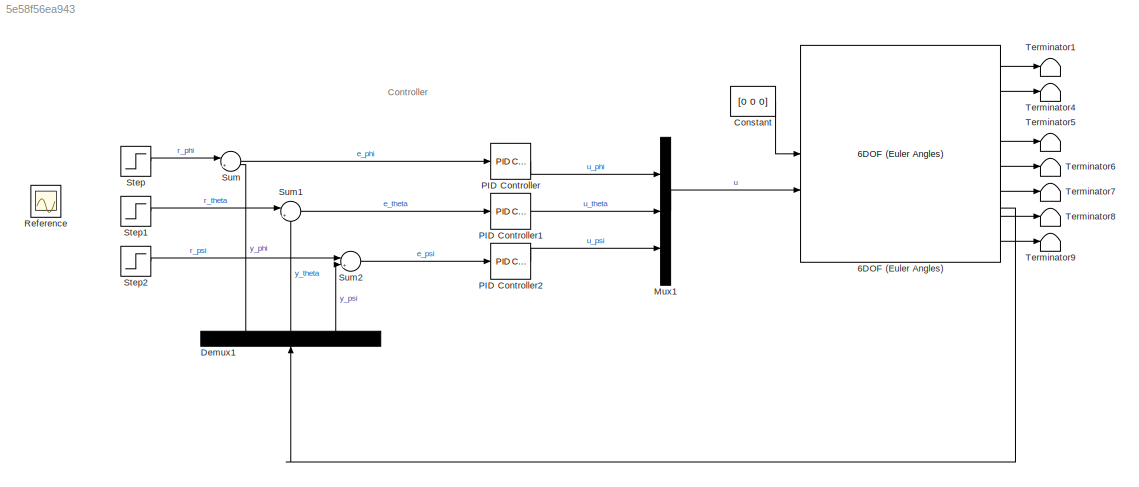
MODEL slx_5e58f56ea943
KIND model
CONFIG AbsTol = auto
CONFIG EnableMultiTasking = off
CONFIG FixedStep = auto
CONFIG MaxStep = auto
CONFIG MinStep = auto
CONFIG RelTol = 1e-3
CONFIG SampleTimeConstraint = Unconstrained
CONFIG SolverName = ode45
CONFIG StartTime = 0.0
CONFIG StopTime = 10.0
BLOCK [Reference] 6DOF (Euler Angles)  REF=shared6dof/6DOF (Euler Angles)
  LibrarySourceBlock = aerolib6dof2/6DOF (Euler Angles)
  SourceBlock = shared6dof/6DOF (Euler Angles)
  SourceType = 6DOF EoM (Body Axis)
BLOCK [Constant] Constant
  Value = [0 0 0]
BLOCK [Demux] Demux1
  NameLocation = right
  Outputs = 3
BLOCK [Mux] Mux1
  DisplayOption = bar
  Inputs = 3
BLOCK [Reference] PID Controller  REF=slpidlib/PID Controller
  LibrarySourceBlock = simulink/Continuous/PID Controller
  SourceBlock = slpidlib/PID Controller
  SourceType = PID 1dof
BLOCK [Reference] PID Controller1  REF=slpidlib/PID Controller
  LibrarySourceBlock = simulink/Continuous/PID Controller
  SourceBlock = slpidlib/PID Controller
  SourceType = PID 1dof
BLOCK [Reference] PID Controller2  REF=slpidlib/PID Controller
  LibrarySourceBlock = simulink/Continuous/PID Controller
  SourceBlock = slpidlib/PID Controller
  SourceType = PID 1dof
BLOCK [Scope] Reference
  Floating = off
  IOType = viewer
  NumInputPorts = 1
  ScopeSpecificationString = C++SS(StrPVP('ActiveDisplayYMinimum','-0.125'),StrPVP('ActiveDisplayYMaximum','1.125'),StrPVP('LimitDataPoints','on'),StrPVP('DataFormat','Array'),StrPVP('Decimation','1'),StrPVP('BlockParamSampleInput','off'))
BLOCK [Step] Step
  SampleTime = 0
BLOCK [Step] Step1
  SampleTime = 0
BLOCK [Step] Step2
  SampleTime = 0
BLOCK [Sum] Sum
  Inputs = |+-
BLOCK [Sum] Sum1
  Inputs = |+-
BLOCK [Sum] Sum2
  Inputs = |+-
BLOCK [Terminator] Terminator1
BLOCK [Terminator] Terminator4
BLOCK [Terminator] Terminator5
BLOCK [Terminator] Terminator6
BLOCK [Terminator] Terminator7
BLOCK [Terminator] Terminator8
BLOCK [Terminator] Terminator9
ANNOTATION (root): Controller
LINE 6DOF (Euler Angles):1 -> Terminator1:1
LINE 6DOF (Euler Angles):2 -> Terminator4:1
LINE 6DOF (Euler Angles):3 -> Demux1:1
LINE 6DOF (Euler Angles):4 -> Terminator5:1
LINE 6DOF (Euler Angles):5 -> Terminator6:1
LINE 6DOF (Euler Angles):6 -> Terminator7:1
LINE 6DOF (Euler Angles):7 -> Terminator8:1
LINE 6DOF (Euler Angles):8 -> Terminator9:1
LINE Constant:1 -> 6DOF (Euler Angles):1
LINE Demux1:1 -> Sum:2
LINE Demux1:2 -> Sum1:2
LINE Demux1:3 -> Sum2:2
LINE Mux1:1 -> 6DOF (Euler Angles):2
LINE PID Controller1:1 -> Mux1:2
LINE PID Controller2:1 -> Mux1:3
LINE PID Controller:1 -> Mux1:1
LINE Step1:1 -> Sum1:1
LINE Step2:1 -> Sum2:1
LINE Step:1 -> Sum:1
LINE Sum1:1 -> PID Controller1:1
LINE Sum2:1 -> PID Controller2:1
LINE Sum:1 -> PID Controller:1
